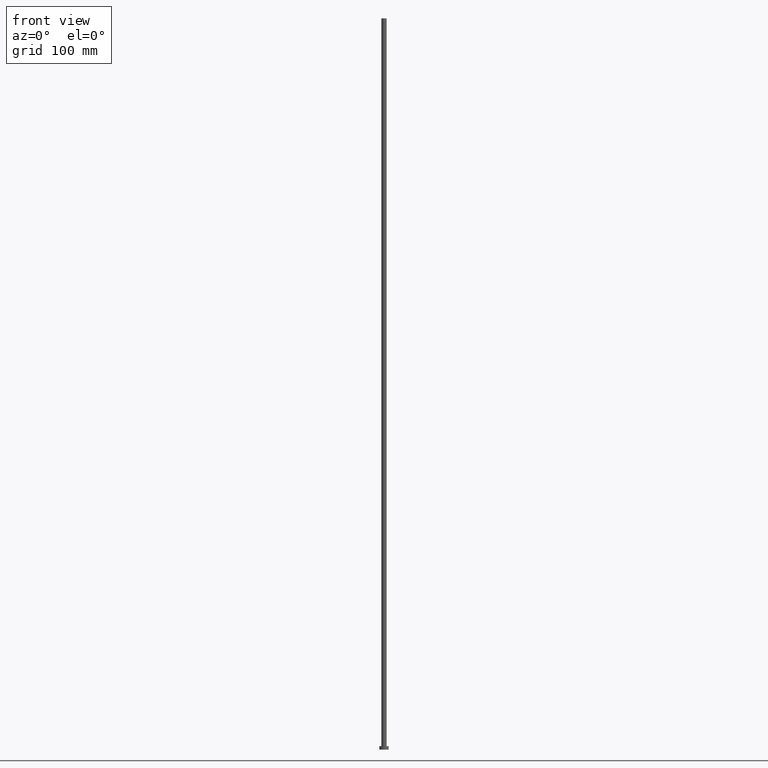
[diagram: clean part render]
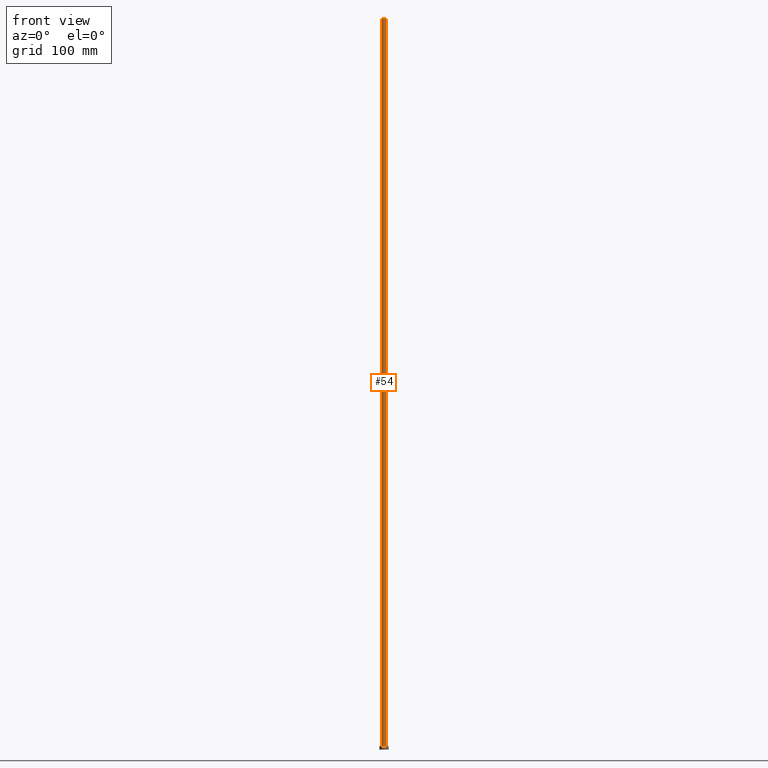
[diagram: same view with one face highlighted and labeled with its STEP entity id]
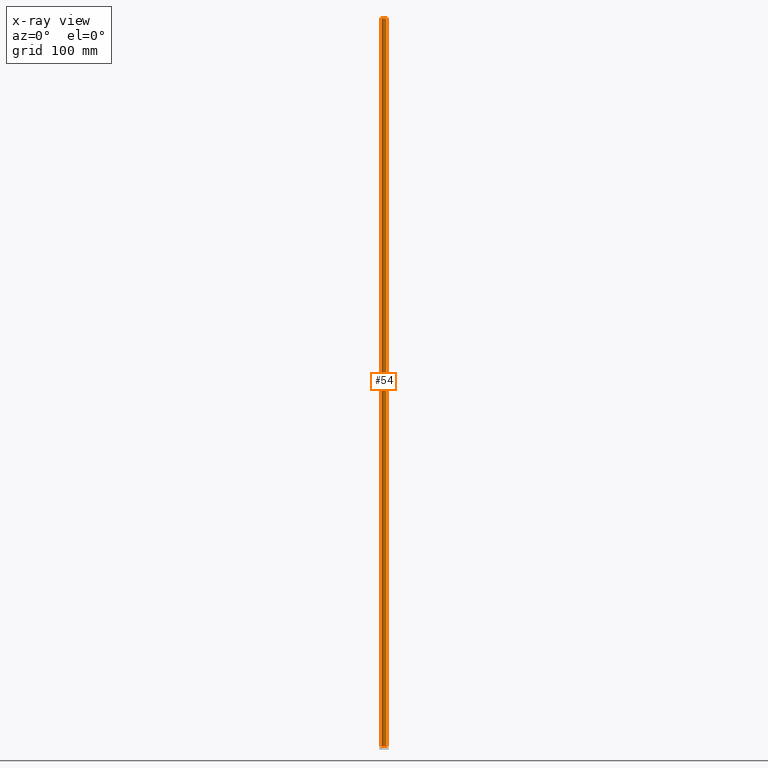
[diagram: x-ray of the same camera — body ghosted, the highlighted face saturated]
A machine part, front view. The second image highlights one B-rep face of the part: STEP entity #54.
The next image is the same camera in x-ray: the body ghosted, the highlighted face saturated — about 0% of this face is hidden behind the body in this view.
In plain terms, the highlighted cylindrical surface (edge-blend (fillet) strip) has radius 2.25 mm, axis along (-0, -0, -1).
Its self-contained STEP definition (entity closure, byte-faithful):
#10 = DIRECTION ( 'NONE',  ( 1.000000000000000000, 0.000000000000000000, 0.000000000000000000 ) ) ;
#13 = CARTESIAN_POINT ( 'NONE',  ( 0.000000000000000000, 0.000000000000000000, 3.000000000000000000 ) ) ;
#16 = CARTESIAN_POINT ( 'NONE',  ( 0.000000000000000000, 0.000000000000000000, 630.0000000000000000 ) ) ;
#19 = DIRECTION ( 'NONE',  ( 1.000000000000000000, 0.000000000000000000, 0.000000000000000000 ) ) ;
#37 = ORIENTED_EDGE ( 'NONE', *, *, #251, .T. ) ;
#54 = ADVANCED_FACE ( 'NONE', ( #124 ), #197, .T. ) ;
#56 = CIRCLE ( 'NONE', #143, 2.250000000000000000 ) ;
#59 = ORIENTED_EDGE ( 'NONE', *, *, #189, .F. ) ;
#61 = EDGE_LOOP ( 'NONE', ( #59, #116, #179, #37 ) ) ;
#62 = DIRECTION ( 'NONE',  ( -1.000000000000000000, 0.000000000000000000, 0.000000000000000000 ) ) ;
#63 = EDGE_CURVE ( 'NONE', #255, #131, #56, .T. ) ;
#64 = CARTESIAN_POINT ( 'NONE',  ( -2.250000000000000000, 0.000000000000000000, 3.000000000000000000 ) ) ;
#71 = CIRCLE ( 'NONE', #224, 2.250000000000000000 ) ;
#74 = VECTOR ( 'NONE', #180, 1000.000000000000000 ) ;
#77 = CARTESIAN_POINT ( 'NONE',  ( 2.250000000000000000, 2.755455298081544285E-16, 3.000000000000000000 ) ) ;
#82 = LINE ( 'NONE', #109, #74 ) ;
#105 = DIRECTION ( 'NONE',  ( -0.000000000000000000, -0.000000000000000000, -1.000000000000000000 ) ) ;
#106 = CARTESIAN_POINT ( 'NONE',  ( 2.250000000000000000, 2.755455298081544285E-16, 630.0000000000000000 ) ) ;
#109 = CARTESIAN_POINT ( 'NONE',  ( 2.250000000000000000, 2.755455298081544285E-16, 630.0000000000000000 ) ) ;
#111 = DIRECTION ( 'NONE',  ( -0.000000000000000000, -0.000000000000000000, -1.000000000000000000 ) ) ;
#116 = ORIENTED_EDGE ( 'NONE', *, *, #63, .F. ) ;
#119 = VECTOR ( 'NONE', #111, 1000.000000000000000 ) ;
#124 = FACE_OUTER_BOUND ( 'NONE', #61, .T. ) ;
#131 = VERTEX_POINT ( 'NONE', #106 ) ;
#142 = CARTESIAN_POINT ( 'NONE',  ( 0.000000000000000000, 0.000000000000000000, 630.0000000000000000 ) ) ;
#143 = AXIS2_PLACEMENT_3D ( 'NONE', #142, #219, #19 ) ;
#157 = DIRECTION ( 'NONE',  ( 0.000000000000000000, 0.000000000000000000, 1.000000000000000000 ) ) ;
#167 = CARTESIAN_POINT ( 'NONE',  ( -2.250000000000000000, 0.000000000000000000, 630.0000000000000000 ) ) ;
#171 = LINE ( 'NONE', #167, #119 ) ;
#173 = AXIS2_PLACEMENT_3D ( 'NONE', #16, #105, #62 ) ;
#177 = VERTEX_POINT ( 'NONE', #64 ) ;
#179 = ORIENTED_EDGE ( 'NONE', *, *, #252, .T. ) ;
#180 = DIRECTION ( 'NONE',  ( -0.000000000000000000, -0.000000000000000000, -1.000000000000000000 ) ) ;
#189 = EDGE_CURVE ( 'NONE', #131, #196, #82, .T. ) ;
#196 = VERTEX_POINT ( 'NONE', #77 ) ;
#197 = CYLINDRICAL_SURFACE ( 'NONE', #173, 2.250000000000000000 ) ;
#219 = DIRECTION ( 'NONE',  ( 0.000000000000000000, 0.000000000000000000, 1.000000000000000000 ) ) ;
#224 = AXIS2_PLACEMENT_3D ( 'NONE', #13, #157, #10 ) ;
#226 = CARTESIAN_POINT ( 'NONE',  ( -2.250000000000000000, 0.000000000000000000, 630.0000000000000000 ) ) ;
#251 = EDGE_CURVE ( 'NONE', #177, #196, #71, .T. ) ;
#252 = EDGE_CURVE ( 'NONE', #255, #177, #171, .T. ) ;
#255 = VERTEX_POINT ( 'NONE', #226 ) ;